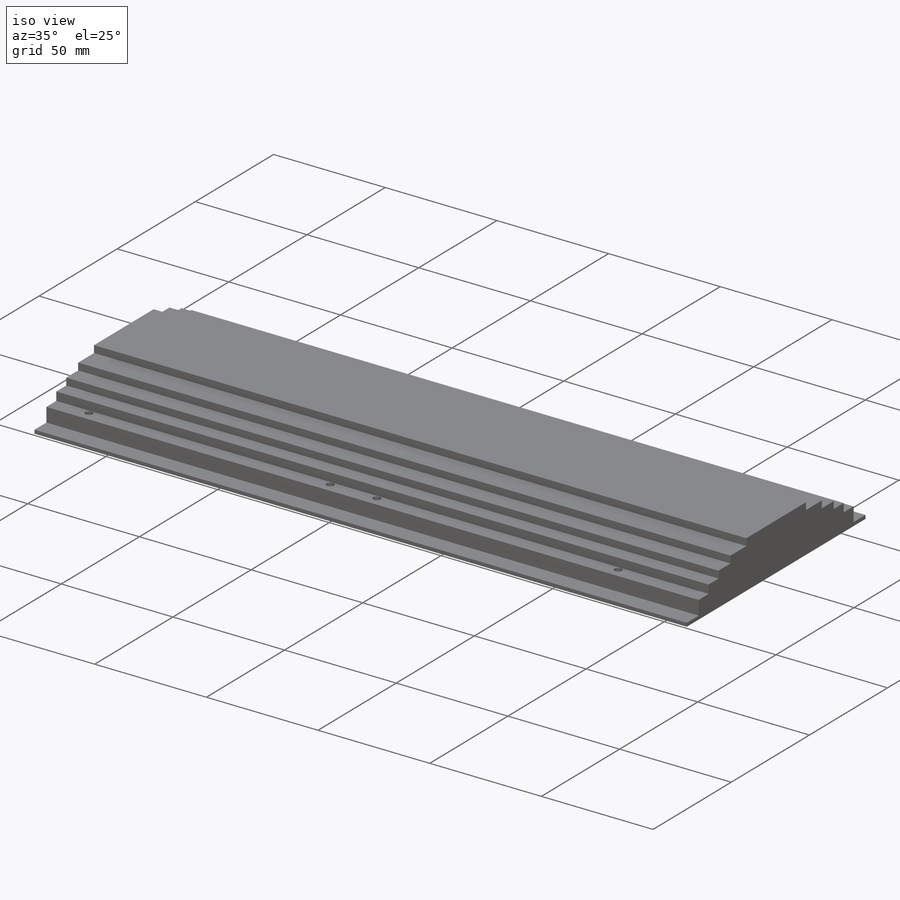
[diagram: iso view]
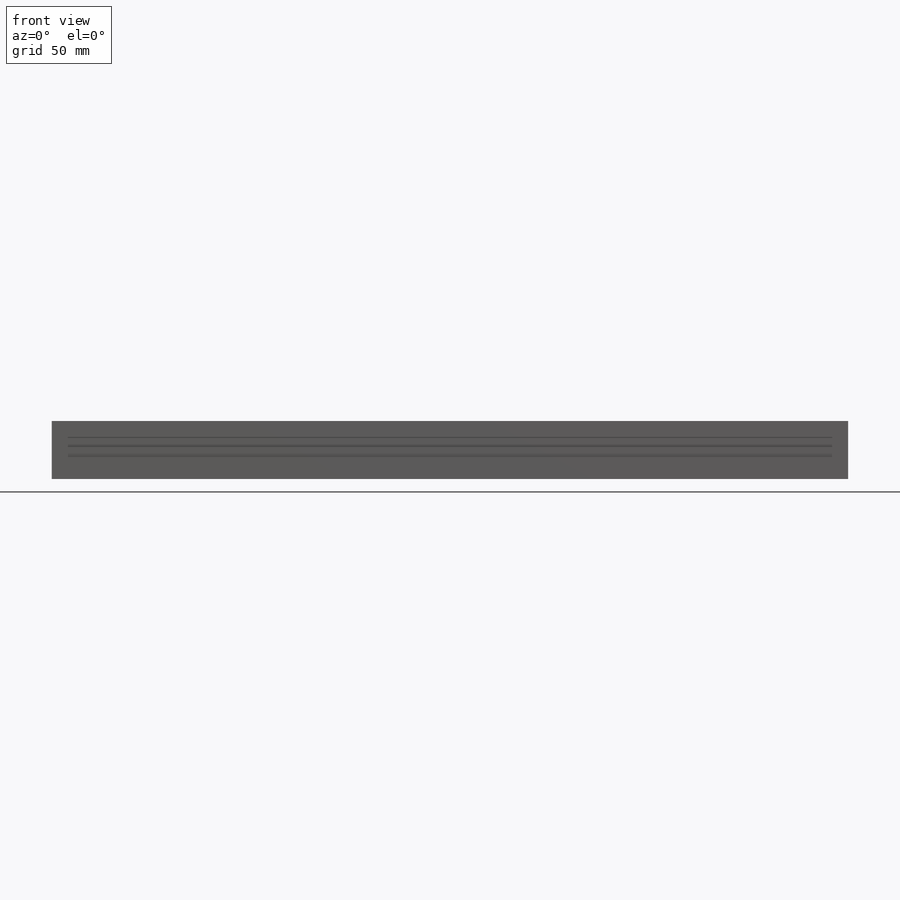
[diagram: front view]
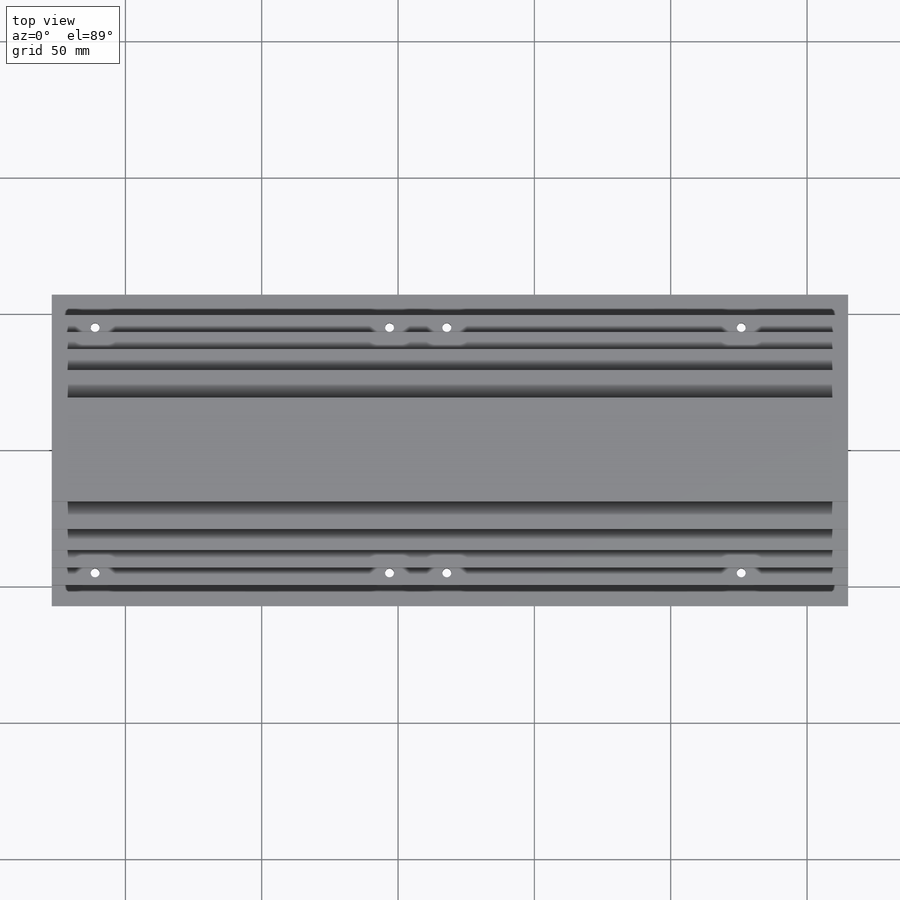
[diagram: top view]
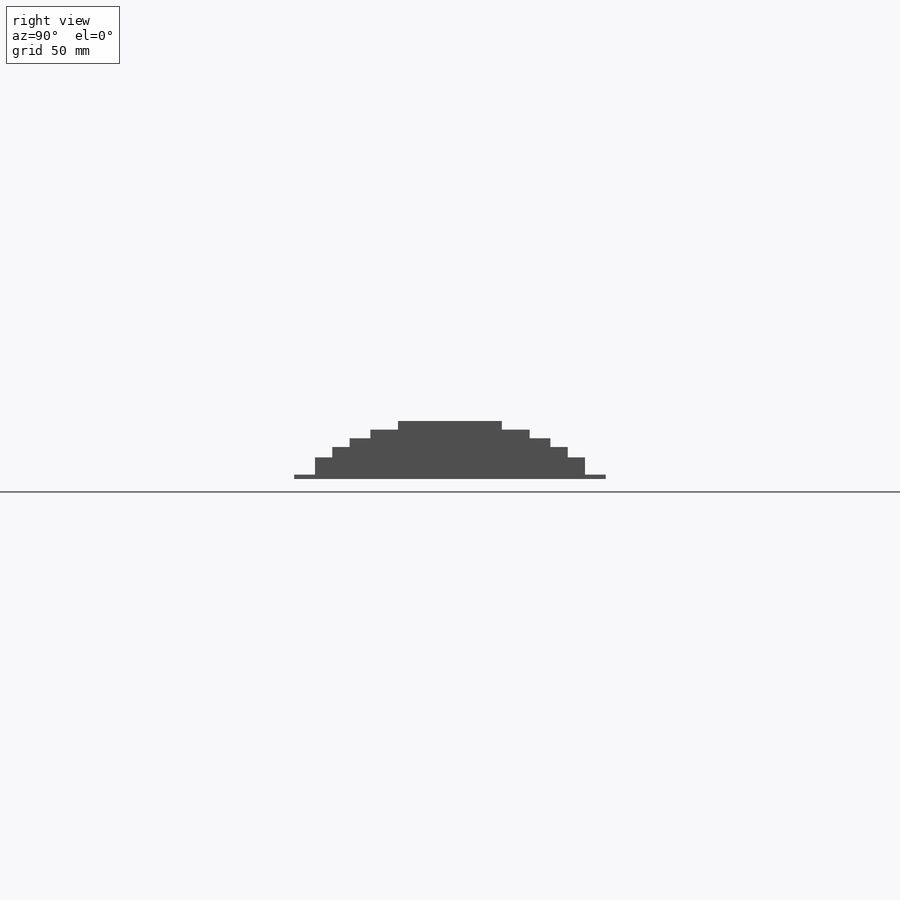
[diagram: right view]
SOLIDWORKS PART (.sldprt)
format: sldprt  version: not decoded by parser v0  size: 532,480 bytes
history: native  units: mm
features: sketch x9, extrude x6, material x1, hole x1, cut_extrude x1 (+11 scaffold rows collapsed)
feature tree (29):
  scaffold x11  (default folders/planes/origin — collapsed)
  material  "Rubber"
  sketch  "Sketch1"  dims[D1=292.1mm D2=114.3mm D3=57.15mm D4=127.0mm]
  extrude  "Extrude1"  Depth=1.6002mm
  sketch  "Sketch3"  dims[D1=7.62mm D2=7.62mm]
  extrude  "Extrude2"  Depth=6.35mm
  hole  "#4 Clearance Hole1"  Diameter=3.2639mm Depth=25.4mm
  sketch  "3DSketch1"  dims[c1.D1=15.875mm c1.D2=~89.99982mm c1.D3=108.0008mm c1.D4=108.0008mm c1.D5=~18.10004mm c1.D6=~18.10004mm c2.D5=~12.14882mm c2.D6=~21.00072mm]
  sketch  "Sketch2"  dims[hole-wizard template sketch: 47 standard entries collapsed; hole parameters kept: c15.Hole Depth=25.4mm c15.D3=~14.816244mm c15.Drill Angle=118.0deg]
  sketch  "Sketch4"  dims[D1=6.35mm D2=6.35mm]
  extrude  "Extrude3"  Depth=3.81mm
  sketch  "Sketch5"  dims[D1=6.35mm D2=6.35mm]
  extrude  "Extrude4"  Depth=3.175mm
  sketch  "Sketch6"  dims[D1=7.62mm D2=7.62mm]
  extrude  "Extrude5"  Depth=3.175mm
  sketch  "Sketch7"  dims[D1=10.16mm D2=10.16mm]
  extrude  "Extrude6"  Depth=3.175mm
  sketch  "Sketch8"
  cut_extrude  "Cut-Extrude1"  [1 undecoded]
decode coverage: 15 of 17 modeling features carry decoded parameters
note: ~ marks probable driven/reference dimensions
note: 1 parameter value undecoded
note: suppression state not decoded; provenance and decode notes live in map.json
